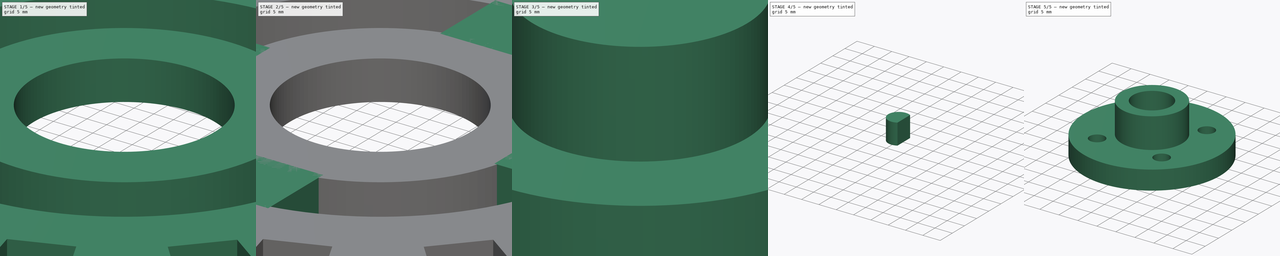
[diagram: build sequence overview — one tinted view per stage of 5, left to right]
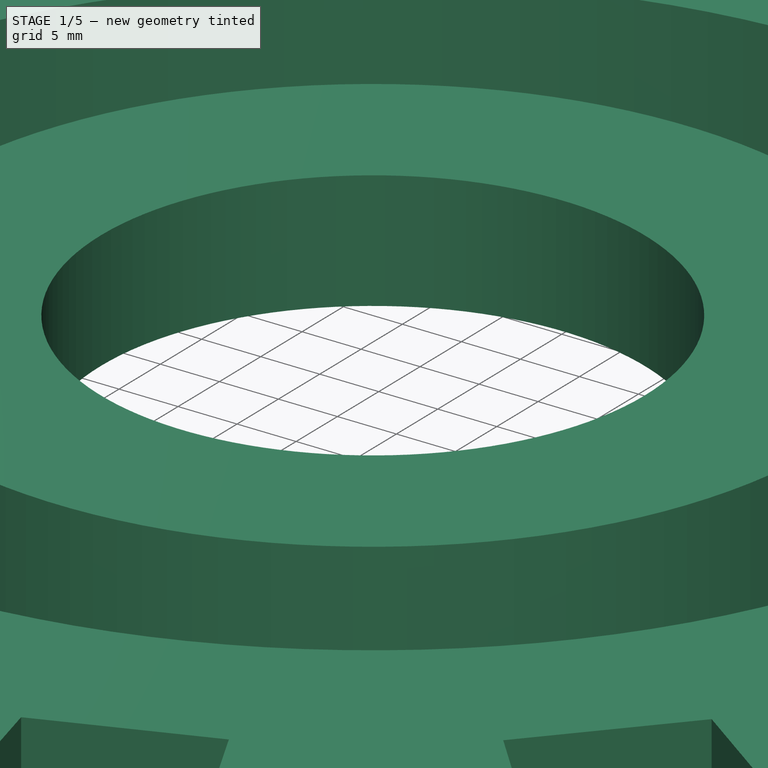
[diagram: stage 1 of 5 — iso view after this stage's code; geometry added in this stage tinted green]
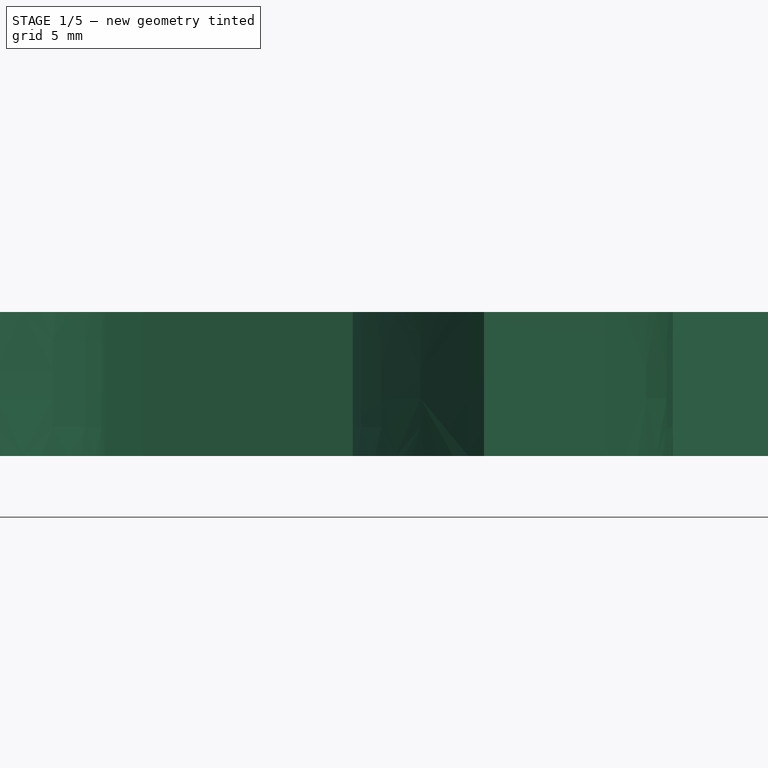
[diagram: stage 1 of 5 — front view after this stage's code; geometry added in this stage tinted green]
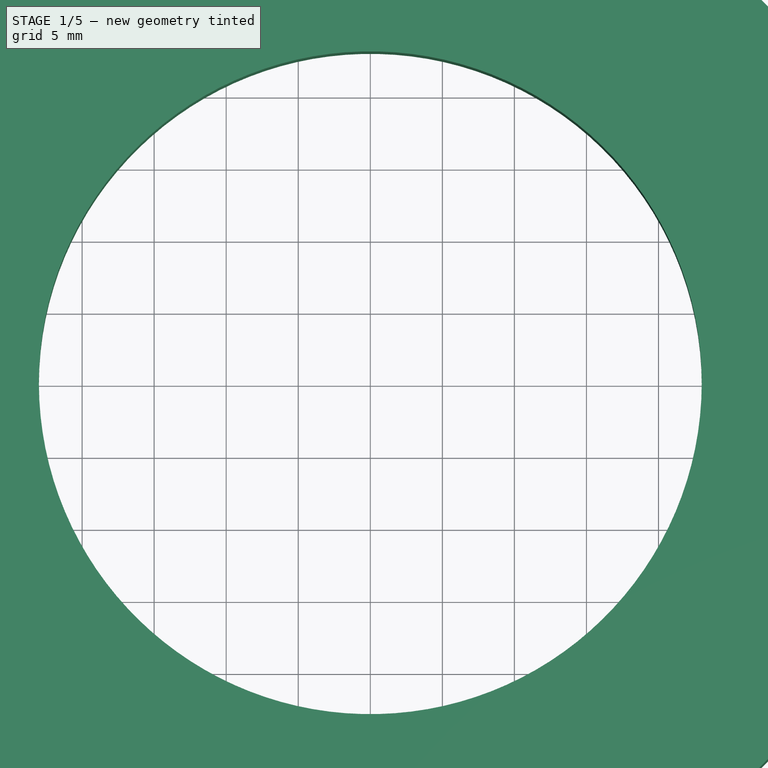
[diagram: stage 1 of 5 — top view after this stage's code; geometry added in this stage tinted green]
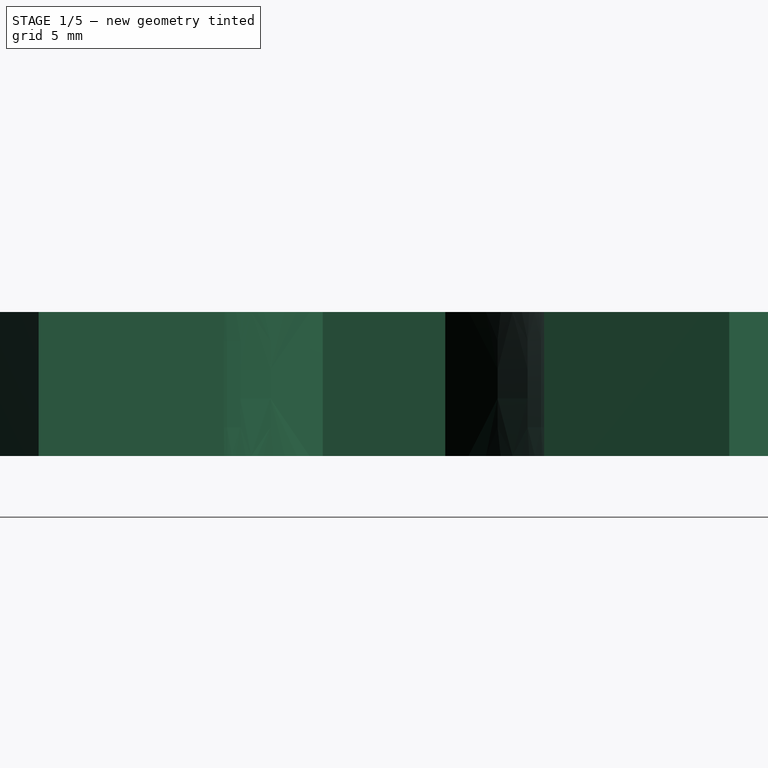
[diagram: stage 1 of 5 — right view after this stage's code; geometry added in this stage tinted green]
FCSTD DOCUMENT  (FreeCAD 0.20R29177 +426 (Git))
Label: encoderFittingFlange
License: All rights reserved
LicenseURL: http://en.wikipedia.org/wiki/All_rights_reserved
objects: Sketcher::SketchObject×7, Part::Extrusion×7, Part::Box×4, Part::Cut×4, Part::MultiFuse×3, Part::FeaturePython×2, Part::Cylinder×1
note: 28 computed .brp shape members not serialized (recipe doc carries the construction recipe); baked Part::Feature solids carry a one-line shape summary decoded from their .brp

FEATURE [Part::Cylinder] Cylinder001
  Angle = 360
  AttacherType = Attacher::AttachEngine3D
  FirstAngle = 0
  Height = 10
  Radius = 55
  SecondAngle = 0
FEATURE [Part::FeaturePython] InvoluteGear001  # WARN: FeaturePython — macro-defined, semantics opaque (R4)
  AttacherType = Attacher::AttachEngine3D
  angular_backlash = 0
  backlash = 0
  beta = 0
  clearance = 0.25
  da = 201
  df = 140.7
  double_helix = false
  dw = 174.2
  head = 0
  head_fillet = 0
  height = 10
  module = 13.4
  numpoints = 6
  pressure_angle = 20
  properties_from_tool = false
  reversed_backlash = false
  root_fillet = 0
  shift = 0
  simple = false
  teeth = 13
  transverse_pitch = 42.0973
  traverse_module = 13.4
  undercut = false
  version = 0.0.4
  expr: angular_backlash = backlash / dw * 360° / pi
FEATURE [Part::Cut] Cut001
  Base = -> InvoluteGear001
  Tool = -> Cylinder001
FEATURE [Part::FeaturePython] Tube001  # WARN: FeaturePython — macro-defined, semantics opaque (R4)
  AttacherType = Attacher::AttachEngine3D
  Height = 10
  InnerRadius = 23
  OuterRadius = 38
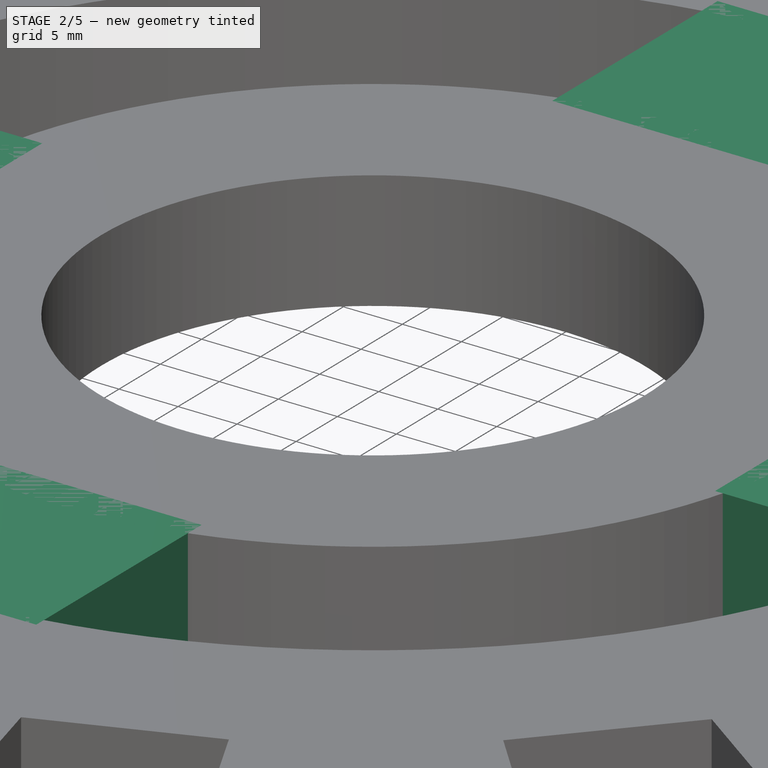
[diagram: stage 2 of 5 — iso view after this stage's code; geometry added in this stage tinted green]
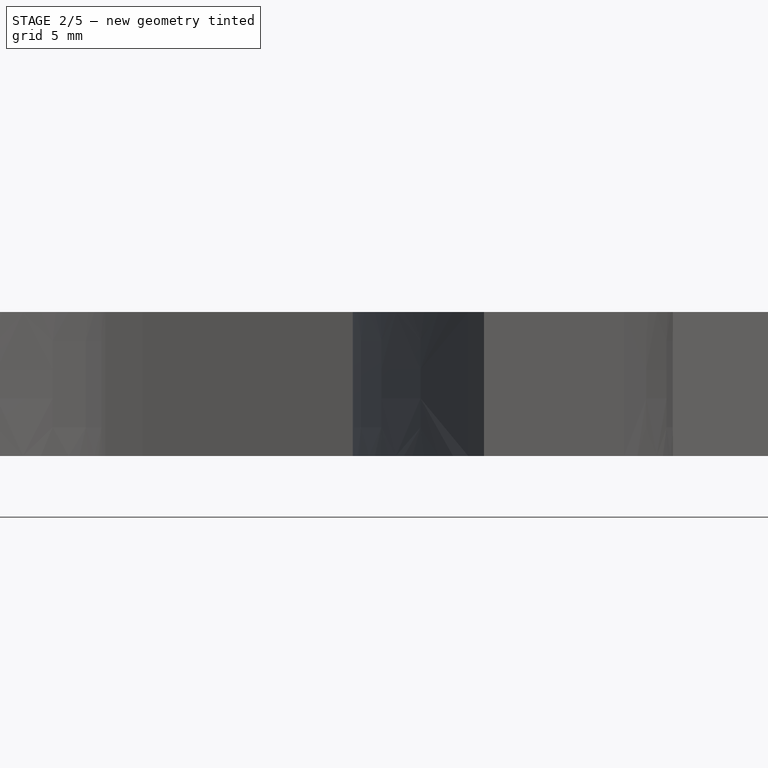
[diagram: stage 2 of 5 — front view after this stage's code; geometry added in this stage tinted green]
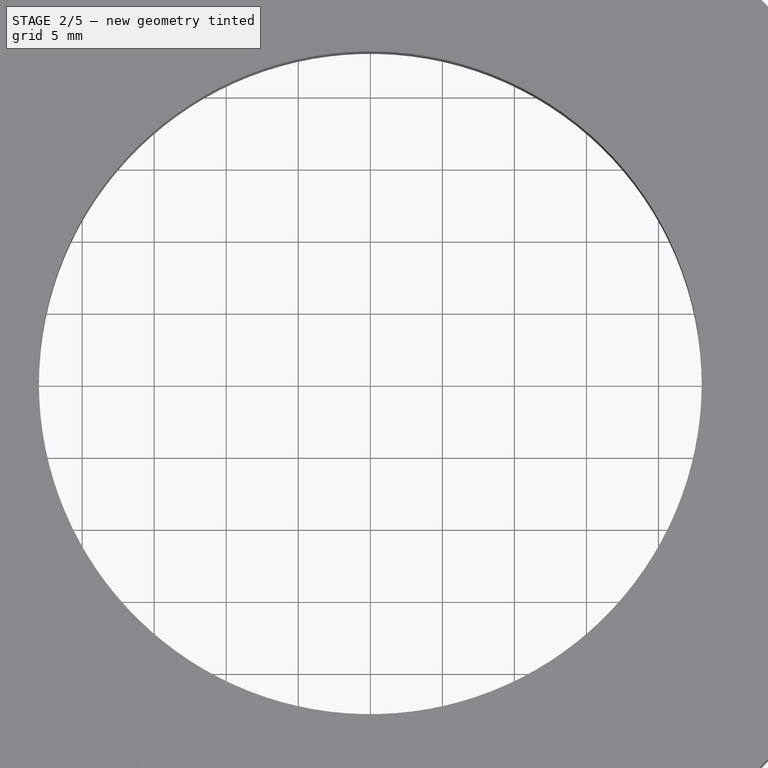
[diagram: stage 2 of 5 — top view after this stage's code; geometry added in this stage tinted green]
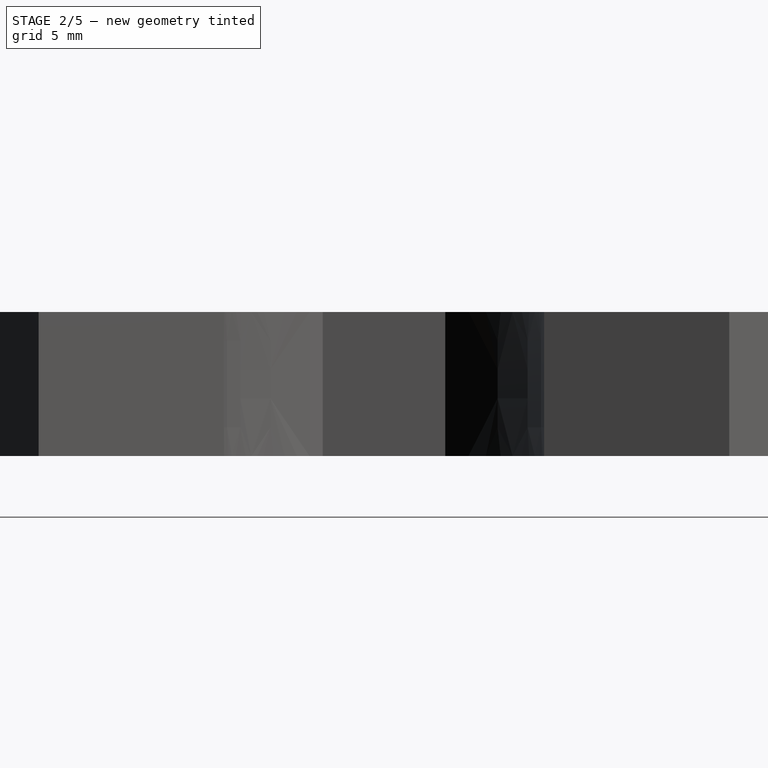
[diagram: stage 2 of 5 — right view after this stage's code; geometry added in this stage tinted green]
FEATURE [Part::Box] Box004  label="Cube004"
  AttacherType = Attacher::AttachEngine3D
  Height = 10
  Length = 20
  Placement = pos=(-10,-55,0) rot=(0,0,1;0rad)
  Width = 20
FEATURE [Part::Box] Box005  label="Cube005"
  AttacherType = Attacher::AttachEngine3D
  Height = 10
  Length = 20
  Placement = pos=(-10,36,0) rot=(0,0,1;0rad)
  Width = 20
FEATURE [Part::Box] Box006  label="Cube006"
  AttacherType = Attacher::AttachEngine3D
  Height = 10
  Length = 20
  Placement = pos=(-55,-10,0) rot=(0,0,1;0rad)
  Width = 20
FEATURE [Part::Box] Box007  label="Cube007"
  AttacherType = Attacher::AttachEngine3D
  Height = 10
  Length = 20
  Placement = pos=(36,-10,0) rot=(0,0,1;0rad)
  Width = 20
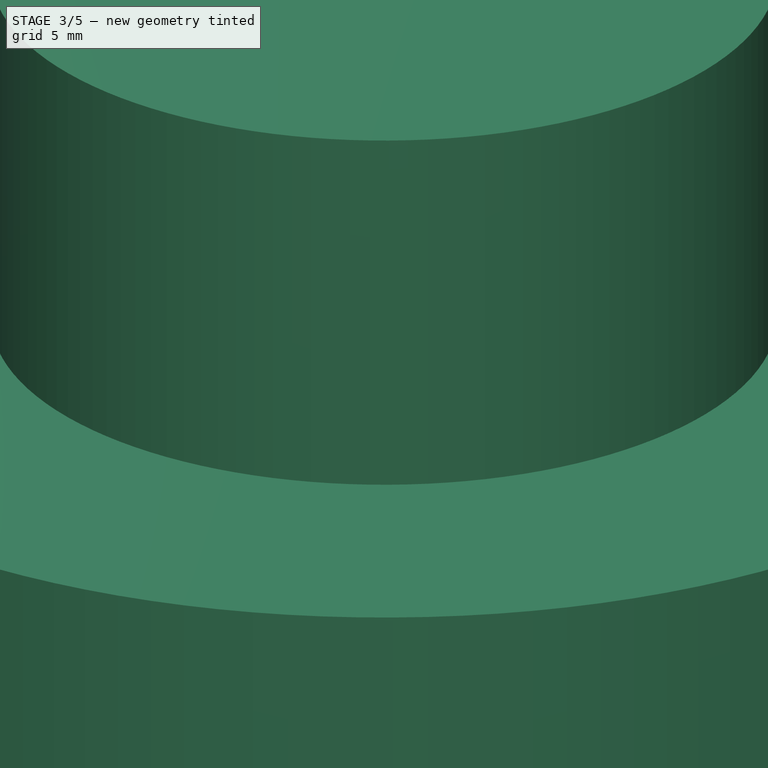
[diagram: stage 3 of 5 — iso view after this stage's code; geometry added in this stage tinted green]
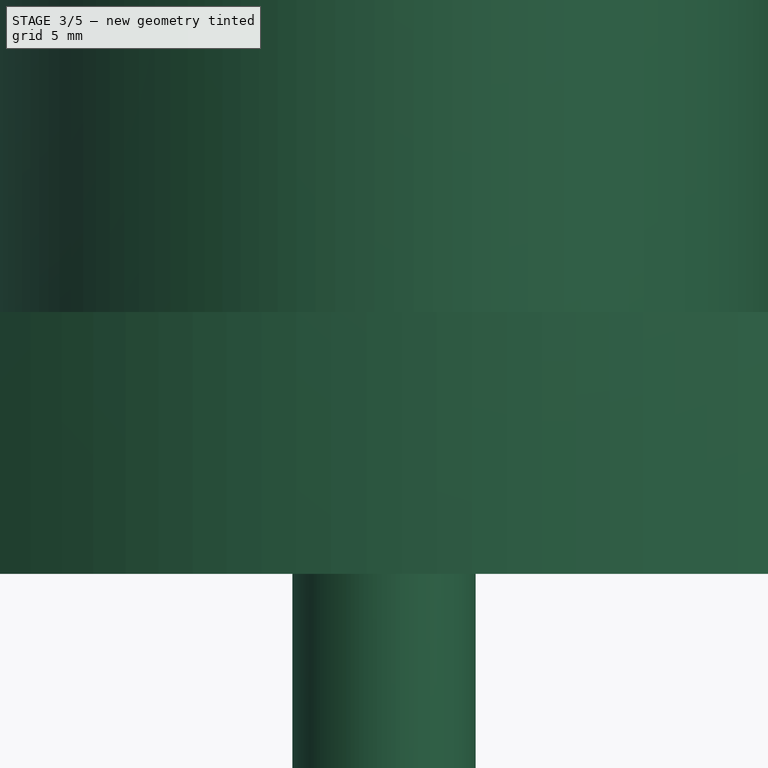
[diagram: stage 3 of 5 — front view after this stage's code; geometry added in this stage tinted green]
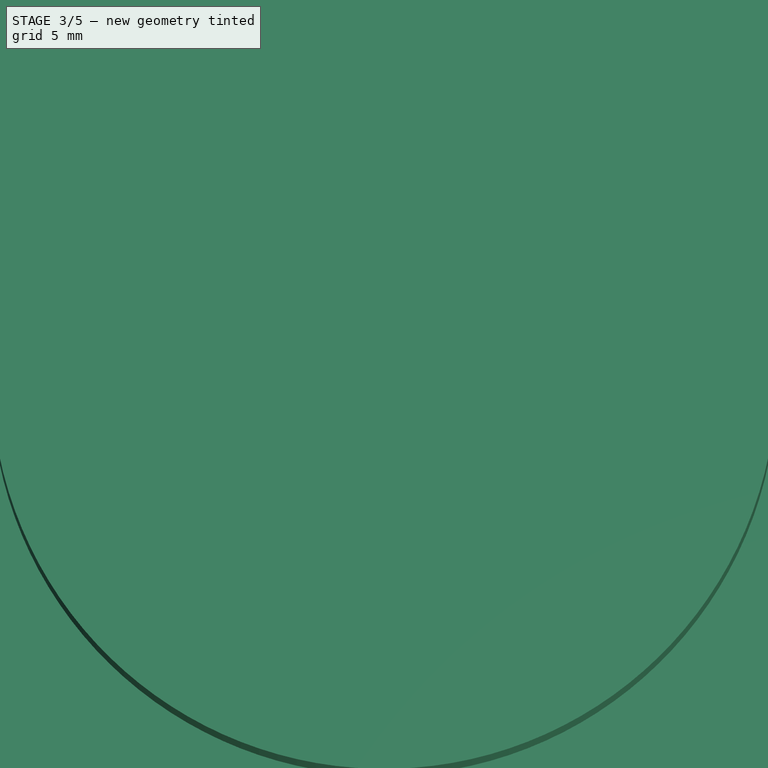
[diagram: stage 3 of 5 — top view after this stage's code; geometry added in this stage tinted green]
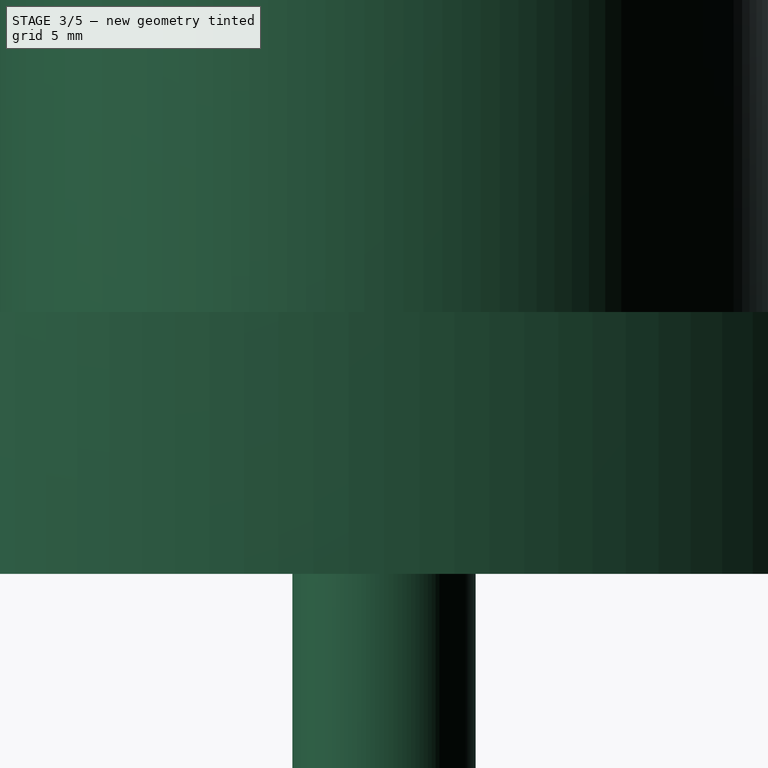
[diagram: stage 3 of 5 — right view after this stage's code; geometry added in this stage tinted green]
FEATURE [Part::MultiFuse] Fusion001  label="MotorGear"
  Shapes = -> [Tube001,Cut001,Box004,Box005,Box006,Box007]
FEATURE [Sketcher::SketchObject] Sketch006
  ExternalGeometry = -> [Fusion001]
  FullyConstrained = true
  MapMode = 5
  Placement = pos=(0,0,10) rot=(0,0,1;0rad)
  Support = -> [Fusion001]
  sketch-geometry (1):
    g0: Circle CenterX=0 CenterY=0 CenterZ=0 NormalX=0 NormalY=0 NormalZ=1 AngleXU=0 Radius=54
  constraints (2):
    c: Coincident(g0,g-3)
    c: Radius(g0) = 54
FEATURE [Part::Extrusion] Extrude006  label="gearHolder"
  Base = -> Sketch006
  Dir = (0,0,1)
  DirMode = 2
  FaceMakerClass = Part::FaceMakerBullseye
  LengthFwd = 10
  LengthRev = 10
  Solid = true
  Symmetric = false
FEATURE [Sketcher::SketchObject] Sketch007
  FullyConstrained = true
  MapMode = 5
  Placement = pos=(0,0,20) rot=(0,0,1;0rad)
  Support = -> [Extrude006]
  sketch-geometry (1):
    g0: Circle CenterX=0 CenterY=0 CenterZ=0 NormalX=0 NormalY=0 NormalZ=1 AngleXU=0 Radius=30
  constraints (2):
    c: Coincident(g0,g-1)
    c: Radius(g0) = 30
FEATURE [Part::Extrusion] Extrude007  label="motorShaftHolder"
  Base = -> Sketch007
  Dir = (0,0,1)
  DirMode = 2
  FaceMakerClass = Part::FaceMakerBullseye
  LengthFwd = 29
  LengthRev = 0
  Solid = true
  Symmetric = false
FEATURE [Sketcher::SketchObject] Sketch008
  FullyConstrained = true
  MapMode = 5
  Placement = pos=(0,0,0) rot=(1,0,0;3.14159rad)
  Support = -> [Extrude006]
  sketch-geometry (1):
    g0: Circle CenterX=0 CenterY=0 CenterZ=0 NormalX=0 NormalY=0 NormalZ=1 AngleXU=0 Radius=7
  constraints (2):
    c: Coincident(g0,g-1)
    c: Radius(g0) = 7
FEATURE [Part::Extrusion] Extrude008  label="encoderHolder"
  Base = -> Sketch008
  Dir = (0,0,-1)
  DirMode = 2
  FaceMakerClass = Part::FaceMakerBullseye
  LengthFwd = 20
  LengthRev = 0
  Solid = true
  Symmetric = false
FEATURE [Part::MultiFuse] Fusion
  Shapes = -> [Extrude006,Extrude007,Extrude008]
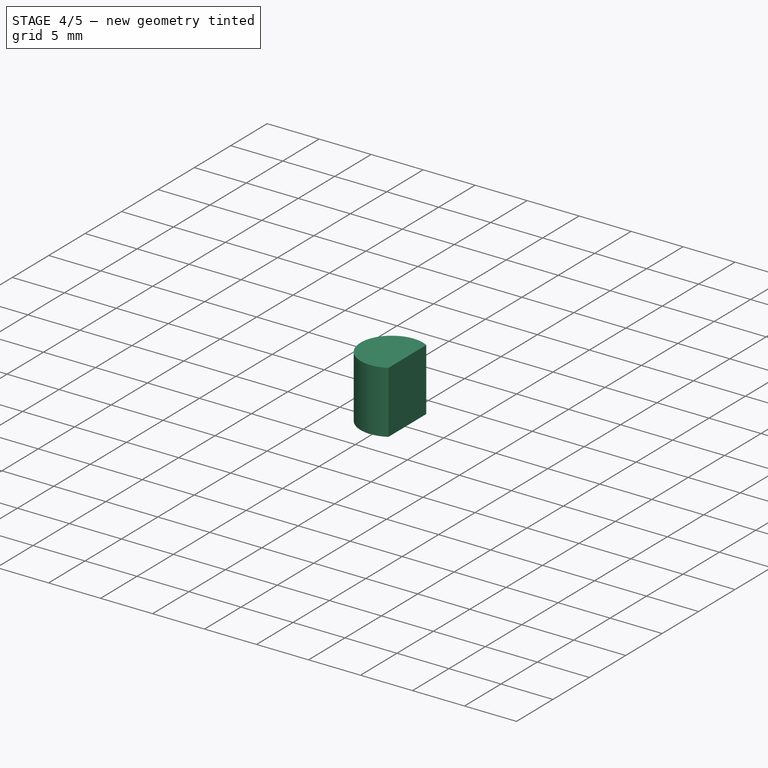
[diagram: stage 4 of 5 — iso view after this stage's code; geometry added in this stage tinted green]
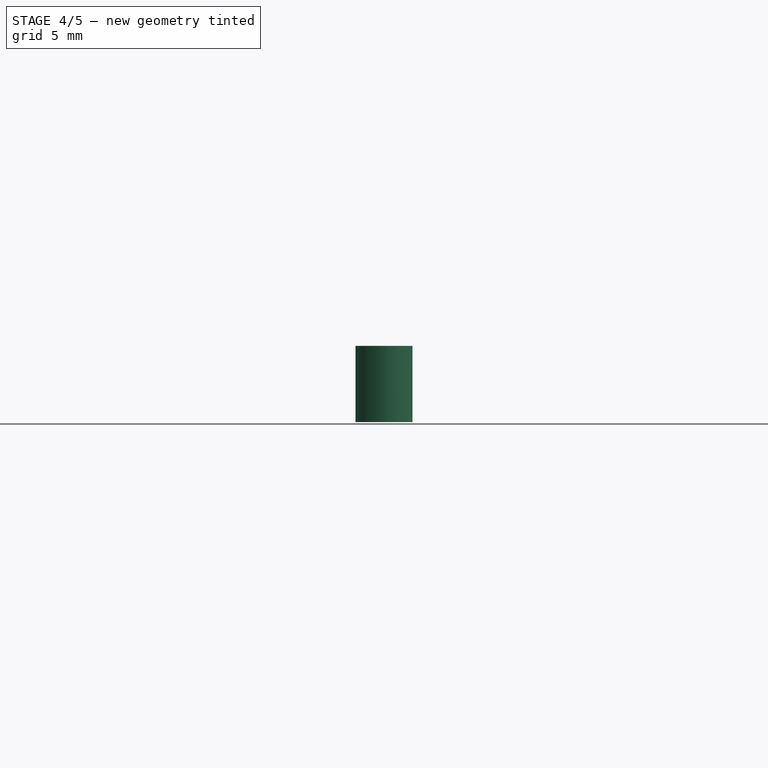
[diagram: stage 4 of 5 — front view after this stage's code; geometry added in this stage tinted green]
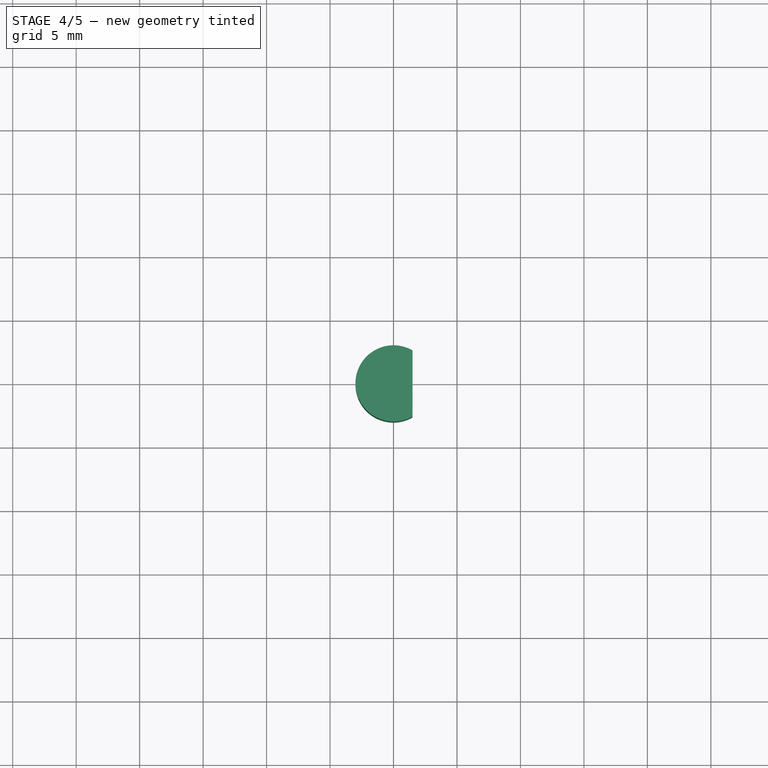
[diagram: stage 4 of 5 — top view after this stage's code; geometry added in this stage tinted green]
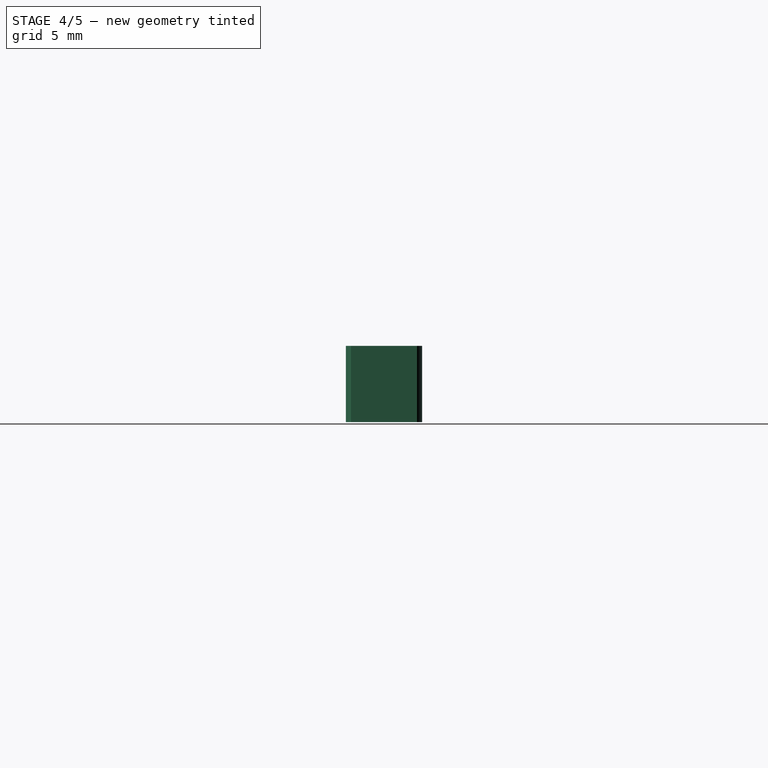
[diagram: stage 4 of 5 — right view after this stage's code; geometry added in this stage tinted green]
FEATURE [Sketcher::SketchObject] Sketch  label="FlangeSketch"
  FullyConstrained = true
  MapMode = 5
  Placement = pos=(0,0,49) rot=(0,0,1;0rad)
  Support = -> [Extrude007]
  sketch-geometry (12):
    g0: Circle CenterX=8.48528 CenterY=8.48528 CenterZ=0 NormalX=0 NormalY=0 NormalZ=1 AngleXU=0 Radius=2
    g1: LineSegment StartX=8.48528 StartY=0 StartZ=0 EndX=8.48528 EndY=8.48528 EndZ=0
    g2: LineSegment StartX=8.48528 StartY=8.48528 StartZ=0 EndX=0 EndY=8.48528 EndZ=0
    g3: Circle CenterX=8.48528 CenterY=-8.48528 CenterZ=0 NormalX=0 NormalY=0 NormalZ=1 AngleXU=0 Radius=2
    g4: LineSegment StartX=8.48528 StartY=0 StartZ=0 EndX=8.48528 EndY=-8.48528 EndZ=0
    g5: LineSegment StartX=8.48528 StartY=-8.48528 StartZ=0 EndX=0 EndY=-8.48528 EndZ=0
    g6: Circle CenterX=-8.48528 CenterY=-8.48528 CenterZ=0 NormalX=0 NormalY=0 NormalZ=1 AngleXU=0 Radius=2
    g7: Circle CenterX=-8.48528 CenterY=8.48528 CenterZ=0 NormalX=0 NormalY=0 NormalZ=1 AngleXU=0 Radius=2
    g8: LineSegment StartX=-8.48528 StartY=8.48528 StartZ=0 EndX=0 EndY=8.48528 EndZ=0
    g9: LineSegment StartX=0 StartY=-8.48528 StartZ=0 EndX=-8.48528 EndY=-8.48528 EndZ=0
    g10: LineSegment StartX=-8.48528 StartY=-8.48528 StartZ=0 EndX=-8.48528 EndY=0 EndZ=0
    g11: LineSegment StartX=-8.48528 StartY=8.48528 StartZ=0 EndX=-8.48528 EndY=0 EndZ=0
  constraints (34):
    c: Distance(g-1,g0) = 12
    c: Diameter(g0) = 4
    c: PointOnObject(g1,g-1)
    c: Coincident(g1,g0)
    c: Vertical(g1)
    c: Coincident(g2,g0)
    c: PointOnObject(g2,g-2)
    c: Horizontal(g2)
    c: Equal(g1,g2)
    c: PointOnObject(g4,g-1)
    c: Coincident(g4,g3)
    c: Vertical(g4)
    c: Coincident(g5,g3)
    c: PointOnObject(g5,g-2)
    c: Horizontal(g5)
    c: Coincident(g8,g7)
    c: PointOnObject(g8,g-2)
    c: Horizontal(g8)
    c: Diameter(g3) = 4
    c: Diameter(g6) = 4
    c: Diameter(g7) = 4
    c: Distance(g-1,g7) = 12
    c: Distance(g-1,g6) = 12
    c: Distance(g-1,g3) = 12
    c: Equal(g5,g4)
    c: Coincident(g9,g5)
    c: Coincident(g9,g6)
    c: Horizontal(g9)
    c: Coincident(g10,g6)
    c: PointOnObject(g10,g-1)
    c: Vertical(g10)
    c: Coincident(g11,g7)
    c: Coincident(g11,g10)
    c: Vertical(g11)
FEATURE [Part::Extrusion] Extrude  label="FlangeExtrude"
  Base = -> Sketch
  Dir = (0,0,1)
  DirMode = 2
  FaceMakerClass = Part::FaceMakerBullseye
  LengthFwd = 0
  LengthRev = 50
  Solid = true
  Symmetric = false
FEATURE [Part::Cut] Cut
  Base = -> Fusion
  Tool = -> Extrude
FEATURE [Part::Cut] Cut002  label="MotorToGearAdapterFlange"
  Base = -> Cut
  Tool = -> Fusion001
FEATURE [Sketcher::SketchObject] Sketch009
  FullyConstrained = true
  MapMode = 5
  Placement = pos=(0,0,-20) rot=(1,0,0;3.14159rad)
  Support = -> [Cut002]
  sketch-geometry (5):
    g0: Circle CenterX=0 CenterY=0 CenterZ=0 NormalX=0 NormalY=0 NormalZ=1 AngleXU=0 Radius=3
    g1: ArcOfCircle CenterX=0 CenterY=0 CenterZ=0 NormalX=0 NormalY=0 NormalZ=1 AngleXU=0 Radius=3 StartAngle=1.0472 EndAngle=5.23599
    g2: LineSegment StartX=1.5 StartY=2.59808 StartZ=0 EndX=1.5 EndY=-9.583e-13 EndZ=0
    g3: LineSegment StartX=1.5 StartY=-9.583e-13 StartZ=0 EndX=1.5 EndY=-2.59808 EndZ=0
    g4: LineSegment StartX=1.5 StartY=-9.583e-13 StartZ=0 EndX=-3 EndY=-9.583e-13 EndZ=0
  constraints (14):
    c: Coincident(g0,g-1)
    c: Radius(g0) = 3
    c: Coincident(g1,g0)
    c: PointOnObject(g1,g0)
    c: Coincident(g2,g1)
    c: Coincident(g3,g1)
    c: Coincident(g2,g3)
    c: Equal(g2,g3)
    c: Parallel(g2,g3)
    c: Coincident(g4,g2)
    c: PointOnObject(g4,g1)
    c: Horizontal(g4)
    c: Distance(g4) = 4.5
    c: Perpendicular(g4,g2)
FEATURE [Part::Extrusion] Extrude009
  Base = -> Sketch009
  Dir = (0,0,-1)
  DirMode = 2
  FaceMakerClass = Part::FaceMakerBullseye
  LengthFwd = 0
  LengthRev = 6
  Solid = true
  Symmetric = false
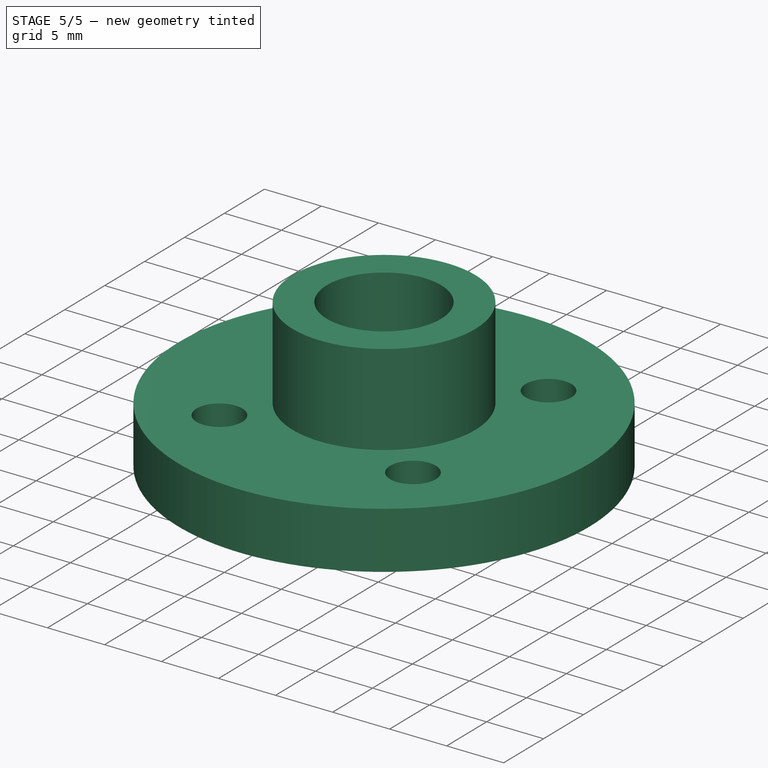
[diagram: stage 5 of 5 — iso view after this stage's code; geometry added in this stage tinted green]
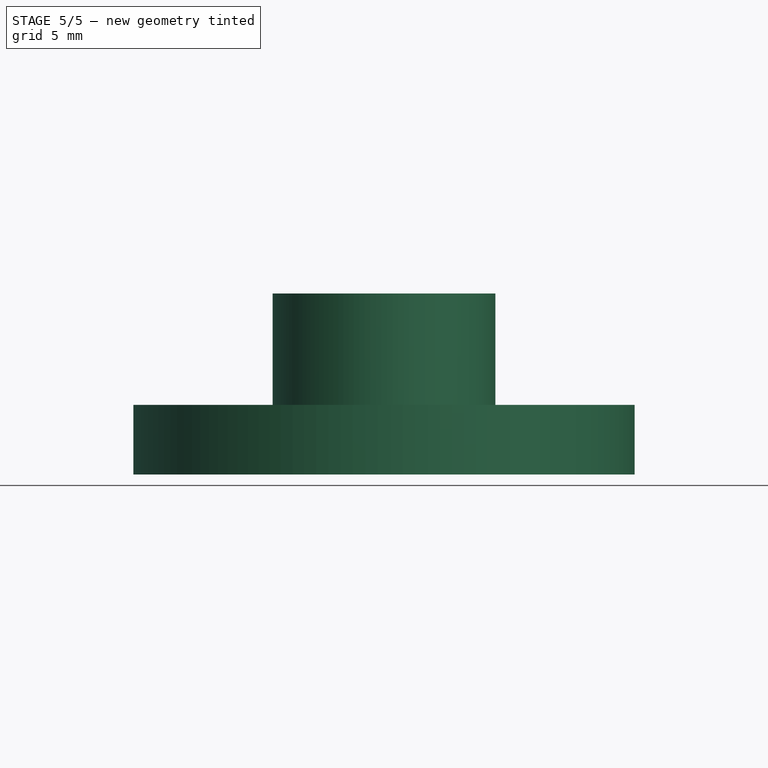
[diagram: stage 5 of 5 — front view after this stage's code; geometry added in this stage tinted green]
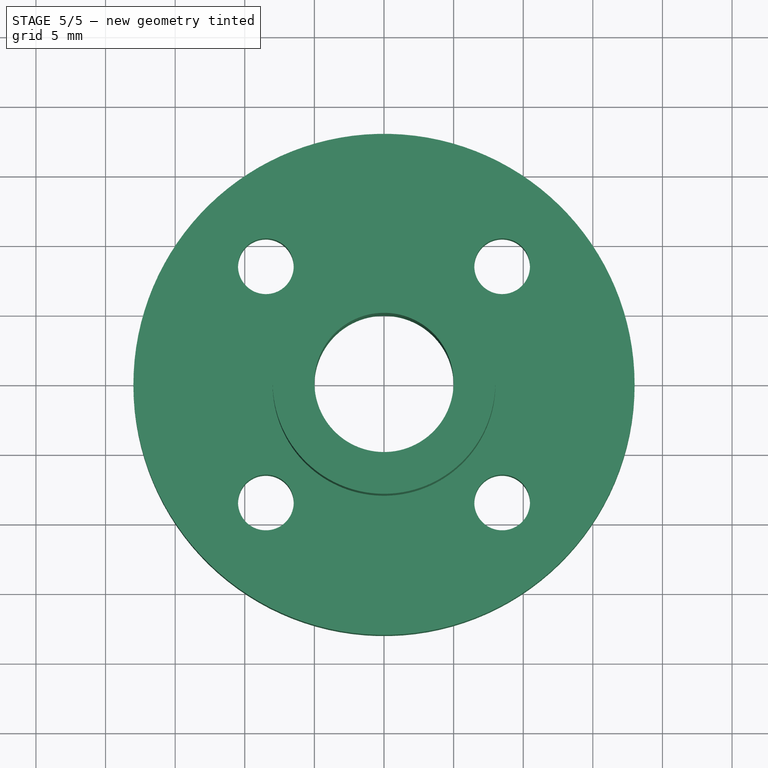
[diagram: stage 5 of 5 — top view after this stage's code; geometry added in this stage tinted green]
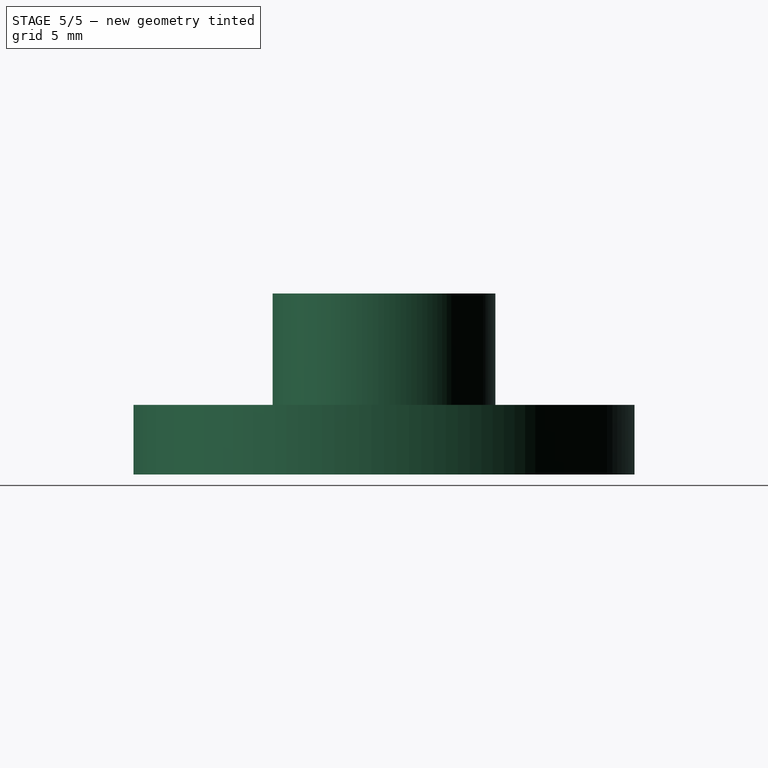
[diagram: stage 5 of 5 — right view after this stage's code; geometry added in this stage tinted green]
FEATURE [Part::Cut] Cut003  label="FlangeToGearAdapterPot"
  Base = -> Cut002
  Tool = -> Extrude009
FEATURE [Sketcher::SketchObject] Sketch010
  FullyConstrained = true
  MapMode = 5
  Placement = pos=(0,0,49) rot=(0,0,1;0rad)
  Support = -> [Cut003]
  sketch-geometry (10):
    g0: Circle CenterX=0 CenterY=0 CenterZ=0 NormalX=0 NormalY=0 NormalZ=1 AngleXU=0 Radius=18
    g1: Circle CenterX=0 CenterY=0 CenterZ=0 NormalX=0 NormalY=0 NormalZ=1 AngleXU=0 Radius=5
    g2: Circle CenterX=8.48528 CenterY=8.48528 CenterZ=0 NormalX=0 NormalY=0 NormalZ=1 AngleXU=0 Radius=2
    g3: LineSegment StartX=0 StartY=0 StartZ=0 EndX=8.48528 EndY=8.48528 EndZ=0
    g4: Circle CenterX=8.48528 CenterY=-8.48528 CenterZ=0 NormalX=0 NormalY=0 NormalZ=1 AngleXU=0 Radius=2
    g5: Circle CenterX=-8.48528 CenterY=-8.48528 CenterZ=0 NormalX=0 NormalY=0 NormalZ=1 AngleXU=0 Radius=2
    g6: Circle CenterX=-8.48528 CenterY=8.48528 CenterZ=0 NormalX=0 NormalY=0 NormalZ=1 AngleXU=0 Radius=2
    g7: LineSegment StartX=-8.48528 StartY=8.48528 StartZ=0 EndX=0 EndY=0 EndZ=0
    g8: LineSegment StartX=-8.48528 StartY=-8.48528 StartZ=0 EndX=0 EndY=0 EndZ=0
    g9: LineSegment StartX=8.48528 StartY=-8.48528 StartZ=0 EndX=0 EndY=0 EndZ=0
  constraints (24):
    c: Coincident(g0,g-1)
    c: Diameter(g0) = 36
    c: Coincident(g1,g0)
    c: Diameter(g1) = 10
    c: Diameter(g2) = 4
    c: Distance(g2,g0) = 12
    c: Coincident(g3,g0)
    c: Coincident(g3,g2)
    c: Angle(g-1,g3) = 0.785398
    c: Diameter(g4) = 4
    c: Diameter(g5) = 4
    c: Diameter(g6) = 4
    c: Coincident(g7,g6)
    c: Coincident(g7,g0)
    c: Coincident(g8,g5)
    c: Coincident(g8,g0)
    c: Coincident(g9,g4)
    c: Coincident(g9,g0)
    c: Distance(g7) = 12
    c: Distance(g8) = 12
    c: Distance(g9) = 12
    c: Angle(g9,g3) = 1.5708
    c: Angle(g8,g9) = 1.5708
    c: Angle(g7,g8) = 1.5708
FEATURE [Part::Extrusion] Extrude010
  Base = -> Sketch010
  Dir = (0,0,1)
  DirMode = 2
  FaceMakerClass = Part::FaceMakerBullseye
  LengthFwd = 5
  LengthRev = 0
  Solid = true
  Symmetric = false
FEATURE [Sketcher::SketchObject] Sketch011
  FullyConstrained = true
  MapMode = 5
  Placement = pos=(0,0,54) rot=(0,0,1;0rad)
  Support = -> [Extrude010]
  sketch-geometry (2):
    g0: Circle CenterX=0 CenterY=0 CenterZ=0 NormalX=0 NormalY=0 NormalZ=1 AngleXU=0 Radius=5
    g1: Circle CenterX=0 CenterY=0 CenterZ=0 NormalX=0 NormalY=0 NormalZ=1 AngleXU=0 Radius=8
  constraints (4):
    c: Coincident(g0,g-1)
    c: Diameter(g0) = 10
    c: Coincident(g1,g0)
    c: Diameter(g1) = 16
FEATURE [Part::Extrusion] Extrude011
  Base = -> Sketch011
  Dir = (0,0,1)
  DirMode = 2
  FaceMakerClass = Part::FaceMakerBullseye
  LengthFwd = 8
  LengthRev = 0
  Solid = true
  Symmetric = false
FEATURE [Part::MultiFuse] Fusion002  label="FlangeMockup"
  Shapes = -> [Extrude011,Extrude010]
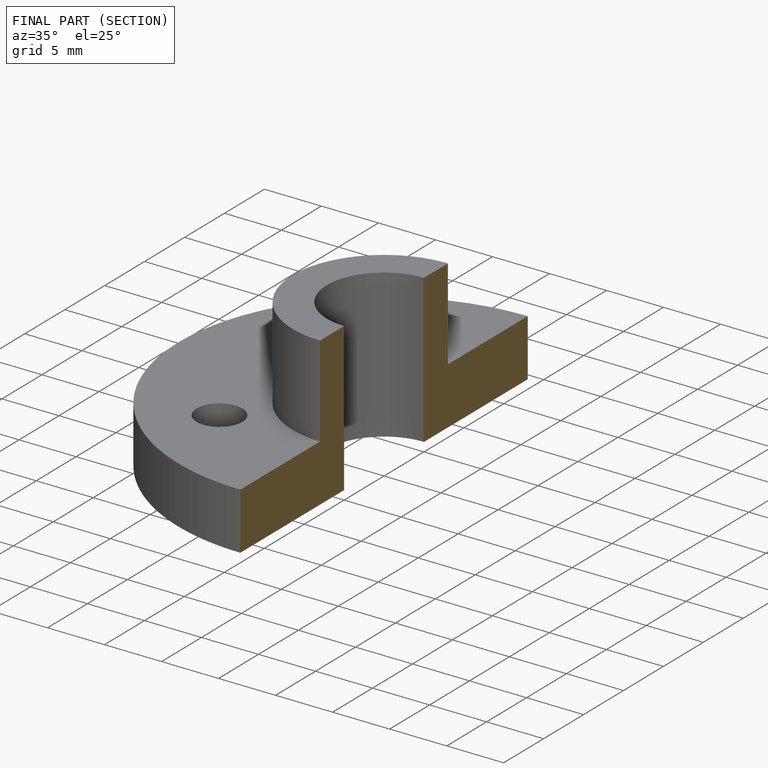
[diagram: finished part — half-section view (interior)]
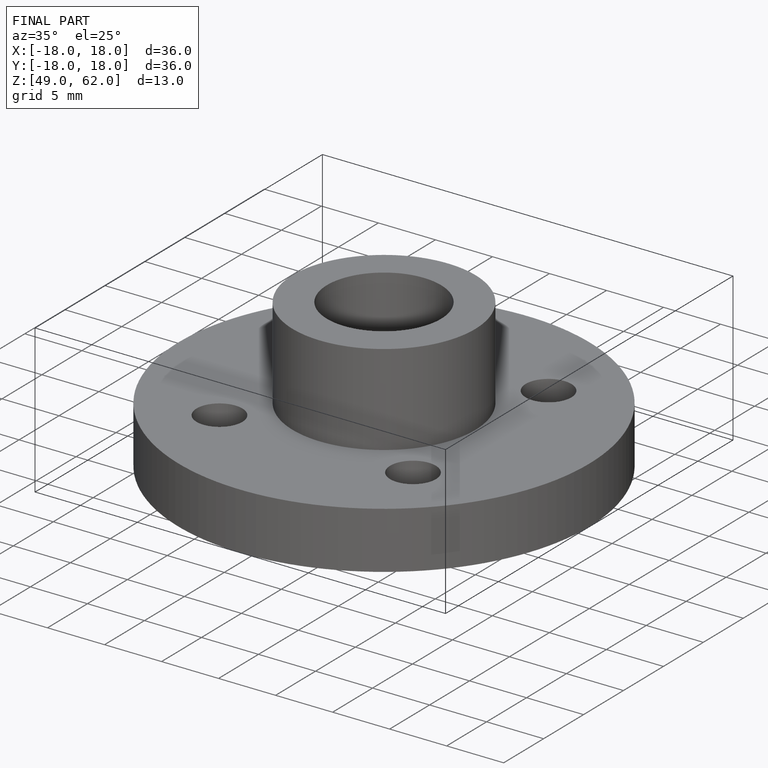
[diagram: finished part — iso view with bounding-box wireframe]
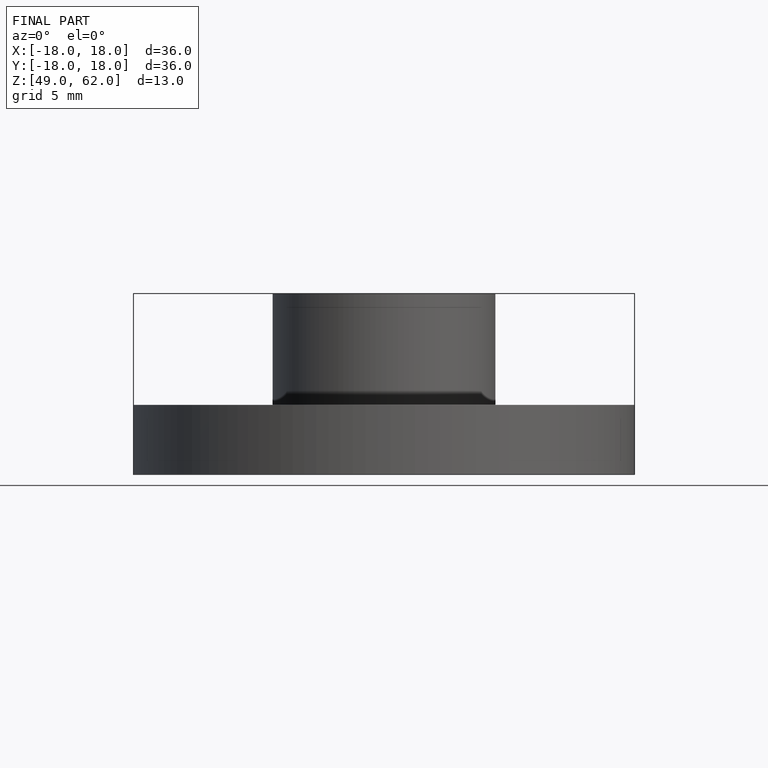
[diagram: finished part — front view with bounding-box wireframe]
